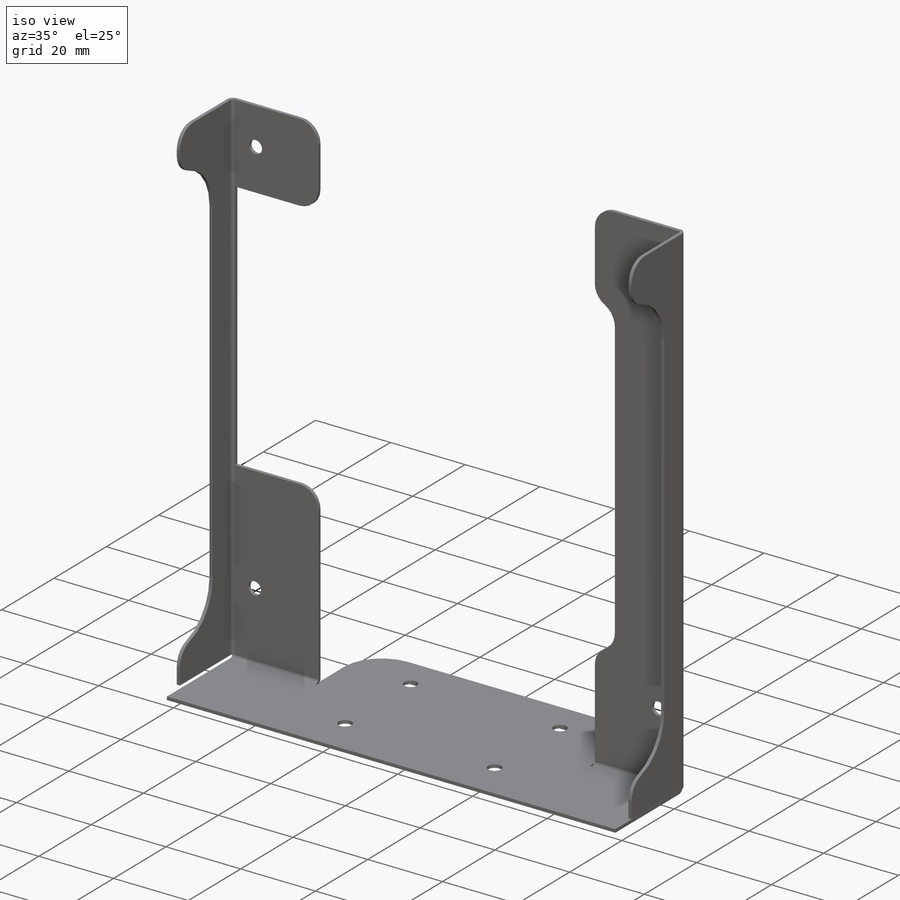
[diagram: iso view]
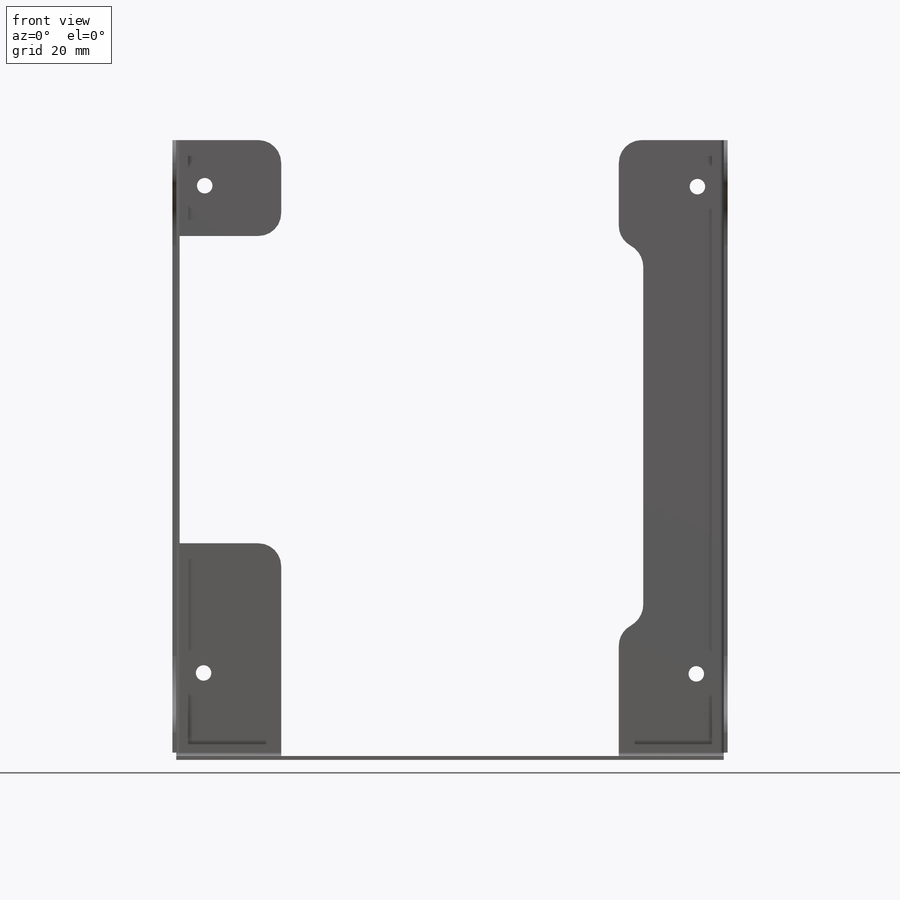
[diagram: front view]
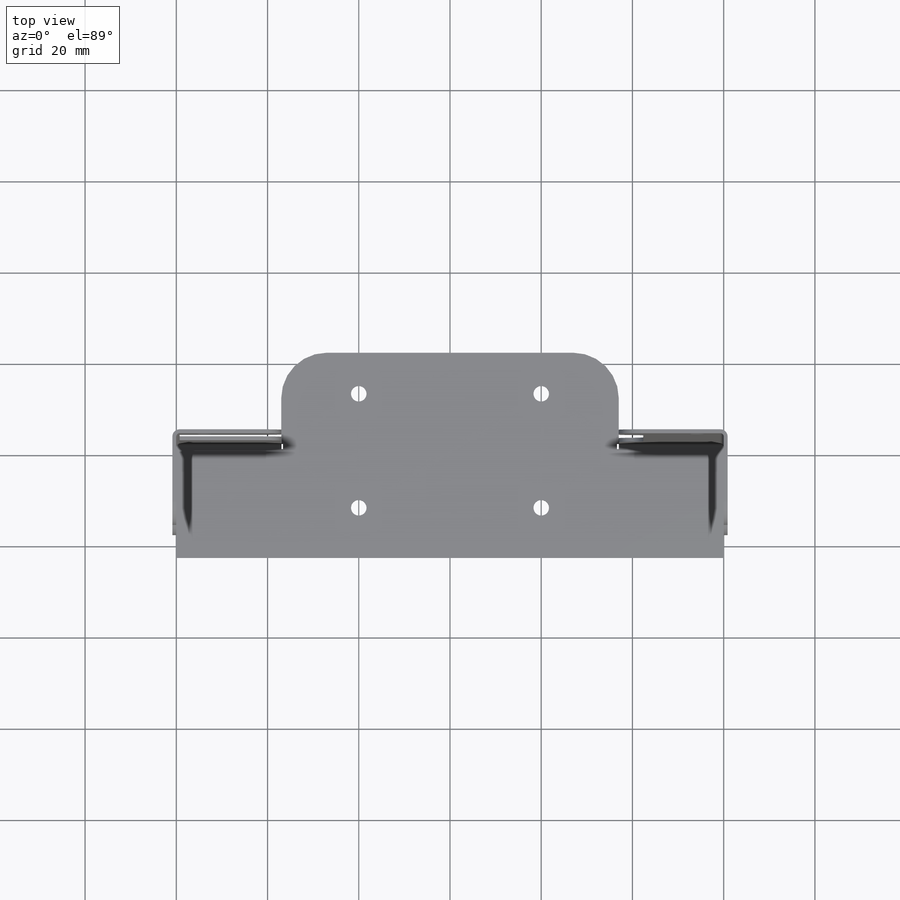
[diagram: top view]
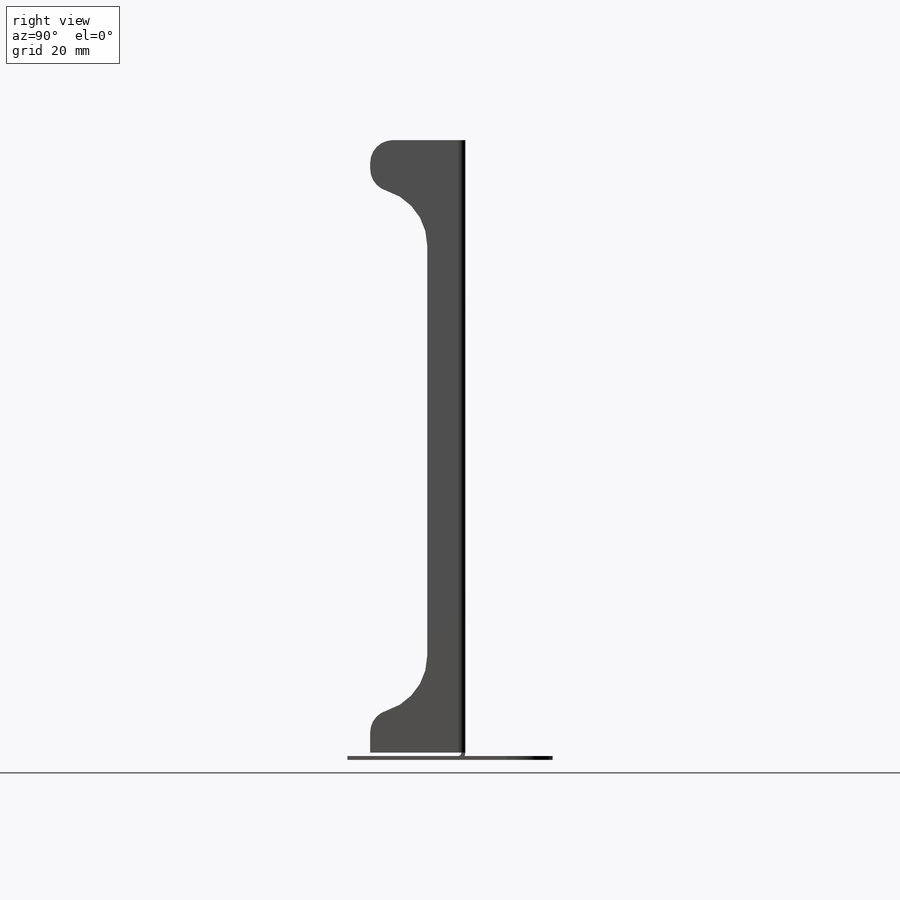
[diagram: right view]
SOLIDWORKS PART (.sldprt)
format: sldprt  version: not decoded by parser v0  size: 573,952 bytes
history: native  units: mm
features: sketch x37, cut_extrude x15, sheet_metal_op x13, mirror x3, hole x2, fillet x2, material x1, plane x1 + 28 further entries (+12 scaffold rows collapsed; 12 parser-record rows omitted)
feature tree (126):
  scaffold x12  (default folders/planes/origin — collapsed)
  material  "Material <not specified>"
  sketch  "Sketch1"  dims[c1.D1=45.0mm c1.D2=120.0mm c2.D1=0.7366mm c2.D2=0.5 c2.D3=0.0mm c2.D6=500.0mm]
  sheet_metal_op  "Base-Flange1"
  plane  "Plane1"
  sketch  "Sketch6"  dims[D1=23.0mm D2=20.0mm]
  cut_extrude  "Cut-Extrude1"  Depth=10mm
  mirror  "Mirror1"
  sketch  "Sketch11"  dims[c1.D1=0.7366mm c1.D4=90.0deg c1.D5=1.0 c1.D8=0.43mm c1.D9=0.43mm c2.D1=0.7366mm c2.D2=500.0mm c2.D3=0.0mm c2.D6=10.0mm c2.D7=135.0mm]
  mirror  "Mirror2"
  hole  "M3 Clearance Hole1"  Diameter=3.4mm Depth=1.27mm
  sketch  "Sketch15"  dims[D1=17.0mm D2=17.0mm D3=25.0mm D4=17.0mm D5=25.0mm D6=9.0mm D7=9.0mm D8=17.0mm]
  sketch  "Sketch14"  dims[hole-wizard template sketch: 47 standard entries collapsed; hole parameters kept: c15.Hole Depth=1.27mm c15.D3=~14.816244mm c15.Drill Angle=118.0deg]
  sketch  "Sketch18"  dims[c1.D1=0.7366mm c1.D4=90.0deg c1.D5=3.0 c1.D8=0.43mm c1.D9=0.43mm c2.D1=0.7366mm c2.D2=500.0mm c2.D3=0.0mm c2.D6=10.0mm c2.D7=20.0mm]
  mirror  "Mirror3"
  hole  "M3 Clearance Hole2"  Diameter=3.4mm Depth=1.27mm
  sketch  "Sketch23"  dims[D1=5.5mm D2=10.0mm D3=106.8mm D4=5.25mm D5=108.0mm D6=0.2mm D7=107.0mm D8=107.75mm]
  sketch  "Sketch22"  dims[hole-wizard template sketch: 47 standard entries collapsed; hole parameters kept: c15.Hole Depth=1.27mm c15.D3=~14.816244mm c15.Drill Angle=118.0deg]
  fillet  "Fillet1"  Radius=10mm
  sketch  "Sketch24"  dims[D1=90.0mm]
  cut_extrude  "Cut-Extrude2"  [1 undecoded]
  sketch  "Sketch25"
  cut_extrude  "Cut-Extrude3"  Depth=10mm
  sketch  "Sketch27"
  cut_extrude  "Cut-Extrude4"  Depth=10mm
  fillet  "Fillet3"  Radius=5mm
  sketch  "Bend-Lines1"
  sketch  "Bounding-Box1"
  sheet_metal_op  "Sheet-Metal(1)"
  "Flat-Pattern(1)"
  sketch  "Bend-Lines2"
  sketch  "Bounding-Box2"
  parser-record x12  (decoder bookkeeping rows leaked as tree rows — omitted from the tree; the rows remain in map.json)
  cut_extrude  "Sheet-Metal(2)"  Depth=0.7366mm
  sheet_metal_op  "Flat-Pattern(1)"
  sketch  "Bend-Lines2"
  sketch  "Bounding-Box2"
  cut_extrude  "Sheet-Metal(3)"  Depth=0.7366mm
  sheet_metal_op  "Flat-Pattern(1)"
  sketch  "Bend-Lines2"
  sketch  "Bounding-Box2"
  cut_extrude  "Sheet-Metal(4)"  Depth=0.7366mm
  sheet_metal_op  "Flat-Pattern(1)"
  sketch  "Bend-Lines2"
  sketch  "Bounding-Box2"
  cut_extrude  "Sheet-Metal(5)"  Depth=0.7366mm
  sheet_metal_op  "Flat-Pattern(1)"
  sketch  "Bend-Lines2"
  sketch  "Bounding-Box2"
  "Flatten-<EdgeBend1>1"
  "Flatten-<MirrorBend1>1"
  cut_extrude  "Sheet-Metal(6)"  Depth=0.7366mm
  sheet_metal_op  "Flat-Pattern(1)"
  sketch  "Bend-Lines2"
  sketch  "Bounding-Box2"
  "Flatten-<EdgeBend1>1"
  "Flatten-<MirrorBend1>1"
  cut_extrude  "Sheet-Metal(7)"  Depth=0.7366mm
  sheet_metal_op  "Flat-Pattern(1)"
  sketch  "Bend-Lines2"
  sketch  "Bounding-Box2"
  "Flatten-<EdgeBend1>1"
  "Flatten-<MirrorBend1>1"
  "Flatten-<EdgeBend2>1"
  cut_extrude  "Sheet-Metal(8)"  Depth=0.7366mm
  sheet_metal_op  "Flat-Pattern(1)"
  sketch  "Bend-Lines2"
  sketch  "Bounding-Box2"
  "Flatten-<EdgeBend1>1"
  "Flatten-<MirrorBend1>1"
  "Flatten-<EdgeBend2>1"
  "Flatten-<MirrorBend2>1"
  cut_extrude  "Sheet-Metal(9)"  Depth=0.7366mm
  sheet_metal_op  "Flat-Pattern(1)"
  sketch  "Bend-Lines2"
  sketch  "Bounding-Box2"
  "Flatten-<EdgeBend1>1"
  "Flatten-<MirrorBend1>1"
  "Flatten-<EdgeBend2>1"
  "Flatten-<MirrorBend2>1"
  cut_extrude  "Sheet-Metal(11)"  Depth=0.7366mm
  sheet_metal_op  "Flat-Pattern(1)"
  sketch  "Bend-Lines2"
  sketch  "Bounding-Box2"
  "Flatten-<EdgeBend1>1"
  "Flatten-<MirrorBend1>1"
  "Flatten-<EdgeBend2>1"
  "Flatten-<MirrorBend2>1"
  cut_extrude  "Sheet-Metal(12)"  Depth=0.7366mm
  sheet_metal_op  "Flat-Pattern(1)"
  sketch  "Bend-Lines2"
  sketch  "Bounding-Box2"
  "Flatten-<EdgeBend1>1"
  "Flatten-<MirrorBend1>1"
  "Flatten-<EdgeBend2>1"
  "Flatten-<MirrorBend2>1"
  cut_extrude  "Sheet-Metal(14)"  Depth=0.7366mm
  sheet_metal_op  "Flat-Pattern(1)"
  sketch  "Bend-Lines2"
  sketch  "Bounding-Box2"
  "Flatten-<EdgeBend1>1"
  "Flatten-<MirrorBend1>1"
  "Flatten-<EdgeBend2>1"
  "Flatten-<MirrorBend2>1"
decode coverage: 27 of 72 modeling features carry decoded parameters; 28 rows unclassified (native names shown)
note: ~ marks probable driven/reference dimensions
note: 1 parameter value undecoded
note: suppression state not decoded; provenance and decode notes live in map.json
